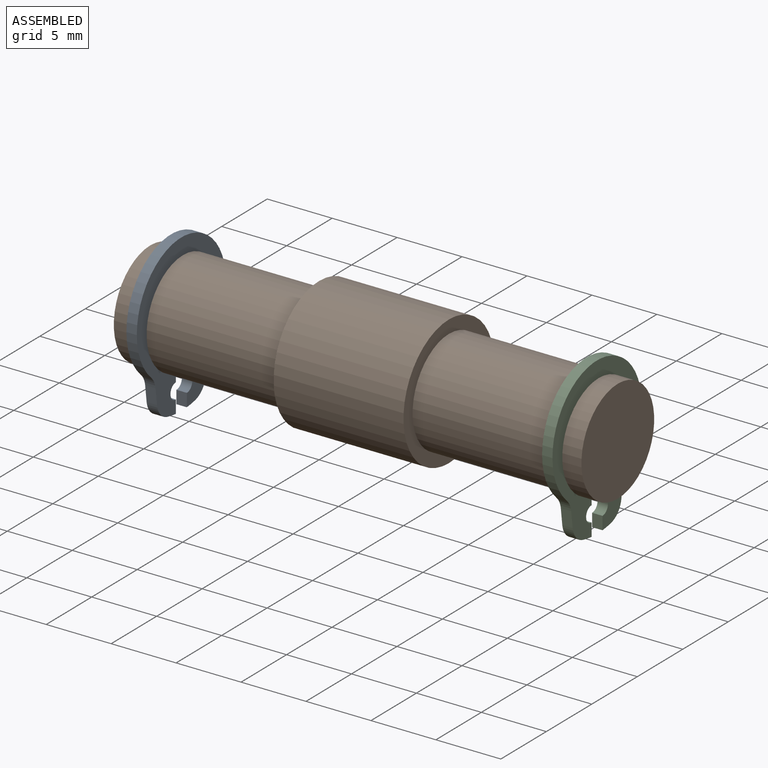
[diagram: assembled view]
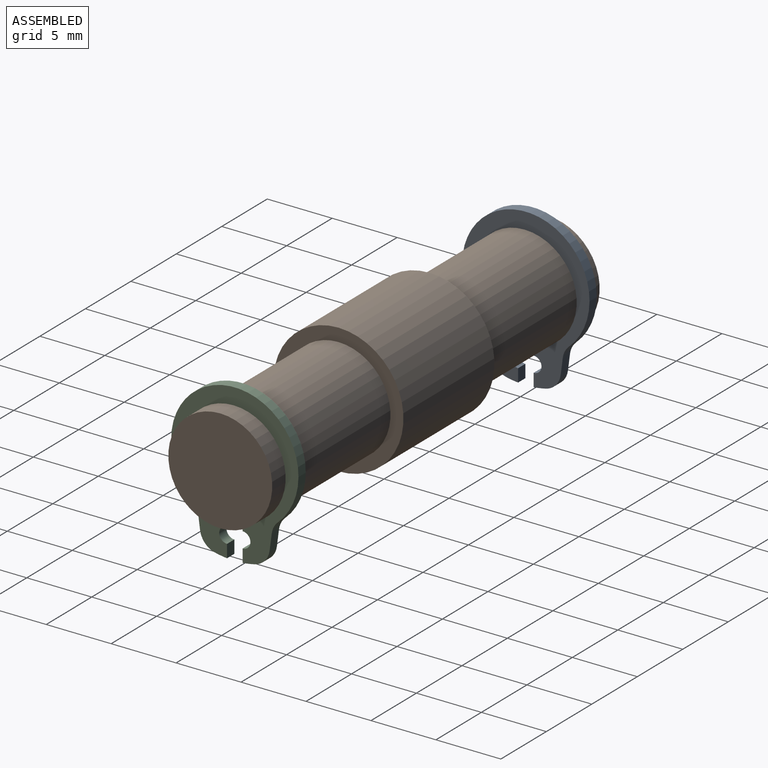
[diagram: assembled view, second angle]
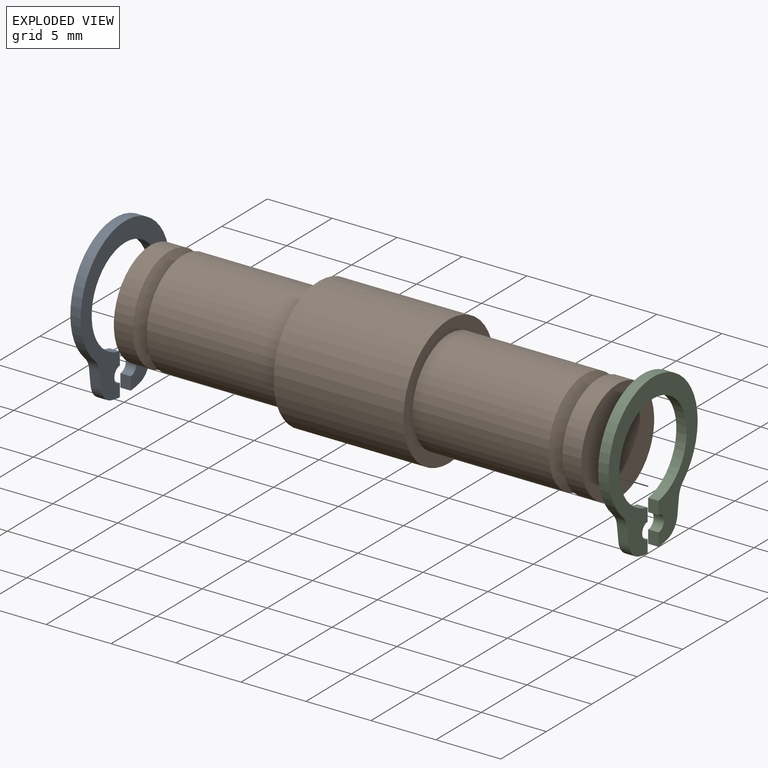
[diagram: exploded view]
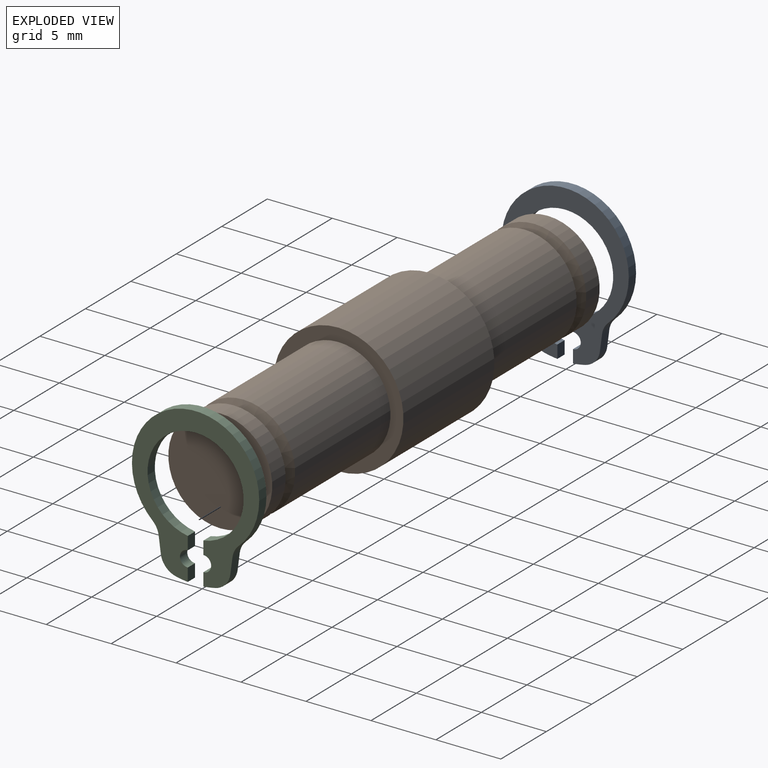
[diagram: exploded view, second angle]
ASSEMBLY  parts=3 mates=2
PART A: 18 faces, bbox 0.8x9.8x12.1 mm
  f0: cylinder r=4.9mm len=9.8mm, axis (-1,0,0), area 18.8mm2, adj f1,f15,f16,f17
  f1: cylinder r=1.49mm len=0.9mm, axis (-1,0,0), area 0.8mm2, adj f0,f2,f16,f17
  f2: plane 1.23x0.8mm, normal (0,-0.99,-0.13), area 1mm2, adj f1,f3,f16,f17
  f3: cylinder r=1.49mm len=1.26mm, axis (-1,0,0), area 1.4mm2, adj f2,f4,f16,f17
  f4: cylinder r=6.88mm len=0.93mm, axis (-1,0,0), area 0.8mm2, adj f3,f5,f16,f17
  f5: plane 1x0.8mm, normal (0,1,0), area 0.8mm2, adj f4,f6,f16,f17
  f6: cylinder r=0.6mm len=1.2mm, axis (-1,0,0), area 1.5mm2, adj f5,f7,f16,f17
  f7: plane 1x0.8mm, normal (0,1,0), area 0.8mm2, adj f6,f8,f16,f17
  f8: cylinder r=3.7mm len=7.4mm, axis (-1,0,0), area 17.6mm2, adj f7,f9,f16,f17
  f9: plane 1x0.8mm, normal (0,-1,0), area 0.8mm2, adj f8,f10,f16,f17
  f10: cylinder r=0.6mm len=1.2mm, axis (-1,0,0), area 1.5mm2, adj f9,f11,f16,f17
  f11: plane 1x0.8mm, normal (0,-1,0), area 0.8mm2, adj f10,f12,f16,f17
  f12: cylinder r=6.88mm len=0.93mm, axis (-1,0,0), area 0.8mm2, adj f11,f13,f16,f17
  f13: cylinder r=1.49mm len=1.26mm, axis (-1,0,0), area 1.4mm2, adj f12,f14,f16,f17
  f14: plane 1.23x0.8mm, normal (0,0.99,-0.13), area 1mm2, adj f13,f15,f16,f17
  f15: cylinder r=1.49mm len=0.9mm, axis (-1,0,0), area 0.8mm2, adj f0,f14,f16,f17
  f16: plane 12.05x9.8mm, normal (1,0,0), area 40.1mm2, adj f0,f1,f2,f3,f4,f5,f6,f7
  f17: plane 12.05x9.8mm, normal (-1,0,0), area 40.1mm2, adj f0,f1,f2,f3,f4,f5,f6,f7
PART B: 13 faces, bbox 36x10x10 mm
  f0: plane 8x8mm, normal (1,0,0), area 50.3mm2, adj f1
  f1: cylinder r=4mm len=8mm, axis (-1,0,0), area 37.1mm2, adj f0,f2
  f2: cone r=4mm half-angle=67.5deg, axis (1,0,0), area 29mm2, adj f1,f3
  f3: cone r=2.73mm half-angle=67.5deg, axis (-1,0,0), area 29mm2, adj f2,f4
  f4: cylinder r=4mm len=10.48mm, axis (-1,0,0), area 263.3mm2, adj f3,f5
  f5: plane 10x10mm, normal (1,0,0), area 28.3mm2, adj f4,f6
  f6: cylinder r=5mm len=10mm, axis (-1,0,0), area 314.2mm2, adj f5,f7
  f7: plane 10x10mm, normal (-1,0,0), area 28.3mm2, adj f6,f8
  f8: cylinder r=4mm len=10.48mm, axis (-1,0,0), area 263.3mm2, adj f7,f9
  f9: cone r=2.73mm half-angle=67.5deg, axis (1,0,0), area 29mm2, adj f8,f10
  f10: cone r=4mm half-angle=67.5deg, axis (-1,0,0), area 29mm2, adj f9,f11
  f11: cylinder r=4mm len=8mm, axis (-1,0,0), area 37.1mm2, adj f10,f12
  f12: plane 8x8mm, normal (-1,0,0), area 50.3mm2, adj f11
PART C: same geometry as A
PLACE A t=(-16,0,0)mm
PLACE B at identity
PLACE C t=(16,0,0)mm
MATE fastened C.f4 <-> B.f1  axis (-1,0,0) through (16,0,0)mm
MATE fastened A.f4 <-> B.f1  axis (-1,0,0) through (-16,0,0)mm
